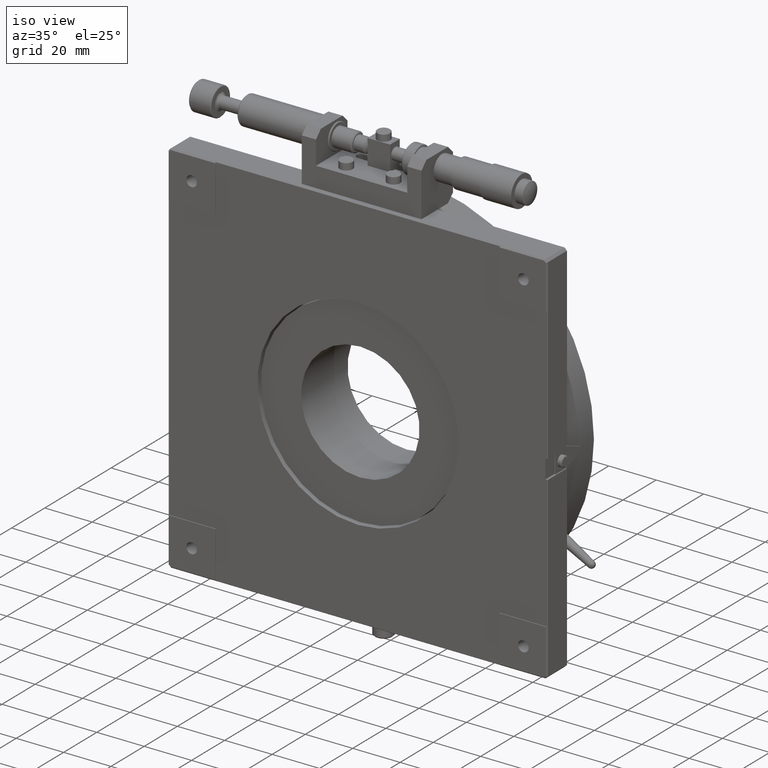
[diagram: clean part render]
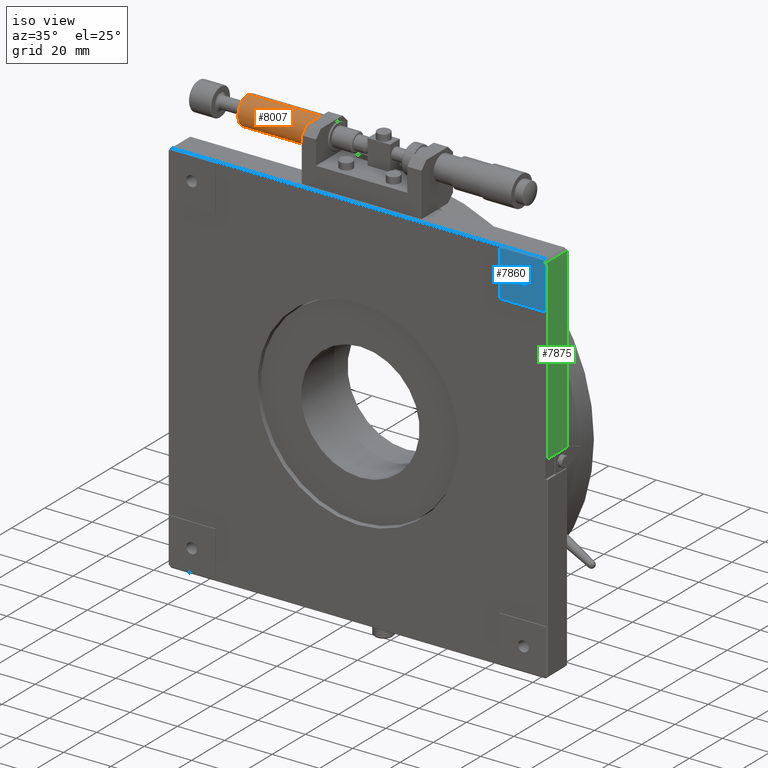
[diagram: same view with three faces highlighted in distinct colors, each labeled with its STEP entity id]
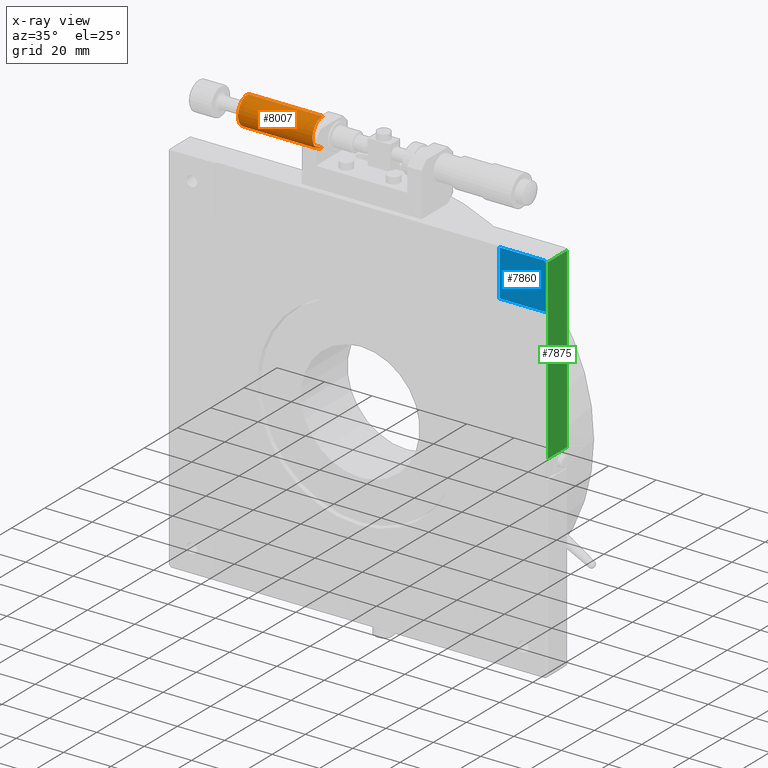
[diagram: x-ray of the same camera — body ghosted, the three highlighted faces saturated]
A machine part, iso view with three faces highlighted in distinct colors.
The next image is the same camera in x-ray (body ghosted, the three faces saturated) — at least one of them is partly hidden behind the body in this view.
Their STEP definitions:

[orange] entity #8007 — the highlighted cylindrical surface (edge-blend (fillet) strip) has radius 6 mm, axis along (-1, 0, 0).
#112 = EDGE_CURVE ( 'NONE', #9220, #9223, #5580, .T. ) ;
#153 = EDGE_CURVE ( 'NONE', #9184, #9203, #5564, .T. ) ;
#446 = CARTESIAN_POINT ( 'NONE',  ( 54.75000000000000000, 15.00000000000000000, 169.0000000000000300 ) ) ;
#454 = CARTESIAN_POINT ( 'NONE',  ( 23.25000000000000000, 15.00000000000000000, 169.0000000000013600 ) ) ;
#459 = CARTESIAN_POINT ( 'NONE',  ( 23.25000000000000000, 15.00000000000000000, 180.9999999999986600 ) ) ;
#477 = CARTESIAN_POINT ( 'NONE',  ( 54.75000000000000000, 15.00000000000000000, 181.0000000000000000 ) ) ;
#1903 = DIRECTION ( 'NONE',  ( 0.0000000000000000000, 0.0000000000000000000, 1.000000000000000000 ) ) ;
#1913 = CARTESIAN_POINT ( 'NONE',  ( 54.75000000000000000, 15.00000000000000000, 175.0000000000000300 ) ) ;
#1916 = DIRECTION ( 'NONE',  ( -1.000000000000000000, 0.0000000000000000000, 0.0000000000000000000 ) ) ;
#2673 = CARTESIAN_POINT ( 'NONE',  ( 2.250000000000000400, 15.00000000000000000, 175.0000000000000300 ) ) ;
#2680 = DIRECTION ( 'NONE',  ( -1.000000000000000000, 0.0000000000000000000, 0.0000000000000000000 ) ) ;
#2702 = DIRECTION ( 'NONE',  ( 0.0000000000000000000, 0.0000000000000000000, 1.000000000000000000 ) ) ;
#3172 = ORIENTED_EDGE ( 'NONE', *, *, #112, .T. ) ;
#3216 = ORIENTED_EDGE ( 'NONE', *, *, #7468, .T. ) ;
#3404 = ORIENTED_EDGE ( 'NONE', *, *, #7529, .T. ) ;
#3440 = CARTESIAN_POINT ( 'NONE',  ( 23.25000000000000000, 15.00000000000000000, 175.0000000000000300 ) ) ;
#3449 = DIRECTION ( 'NONE',  ( 0.0000000000000000000, 0.0000000000000000000, 1.000000000000000000 ) ) ;
#3465 = DIRECTION ( 'NONE',  ( 1.000000000000000000, -0.0000000000000000000, -0.0000000000000000000 ) ) ;
#4244 = AXIS2_PLACEMENT_3D ( 'NONE', #2673, #2680, #2702 ) ;
#4531 = ORIENTED_EDGE ( 'NONE', *, *, #153, .F. ) ;
#5277 = CIRCLE ( 'NONE', #8964, 5.999999999999977800 ) ;
#5336 = CIRCLE ( 'NONE', #8957, 5.999999999999977800 ) ;
#5528 = VECTOR ( 'NONE', #6165, 1000.000000000000000 ) ;
#5564 = LINE ( 'NONE', #6270, #5567 ) ;
#5567 = VECTOR ( 'NONE', #6282, 1000.000000000000000 ) ;
#5580 = LINE ( 'NONE', #6166, #5528 ) ;
#6165 = DIRECTION ( 'NONE',  ( -1.000000000000000000, 0.0000000000000000000, 0.0000000000000000000 ) ) ;
#6166 = CARTESIAN_POINT ( 'NONE',  ( 2.250000000000000400, 15.00000000000000000, 181.0000000000000000 ) ) ;
#6270 = CARTESIAN_POINT ( 'NONE',  ( 2.250000000000000400, 15.00000000000000000, 169.0000000000000300 ) ) ;
#6282 = DIRECTION ( 'NONE',  ( -1.000000000000000000, 0.0000000000000000000, 0.0000000000000000000 ) ) ;
#7468 = EDGE_CURVE ( 'NONE', #9184, #9220, #5277, .T. ) ;
#7529 = EDGE_CURVE ( 'NONE', #9223, #9203, #5336, .T. ) ;
#7625 = EDGE_LOOP ( 'NONE', ( #4531, #3216, #3172, #3404 ) ) ;
#8007 = ADVANCED_FACE ( 'NONE', ( #8576 ), #8527, .T. ) ;
#8527 = CYLINDRICAL_SURFACE ( 'NONE', #4244, 5.999999999999977800 ) ;
#8576 = FACE_OUTER_BOUND ( 'NONE', #7625, .T. ) ;
#8957 = AXIS2_PLACEMENT_3D ( 'NONE', #3440, #3465, #3449 ) ;
#8964 = AXIS2_PLACEMENT_3D ( 'NONE', #1913, #1916, #1903 ) ;
#9184 = VERTEX_POINT ( 'NONE', #446 ) ;
#9203 = VERTEX_POINT ( 'NONE', #454 ) ;
#9220 = VERTEX_POINT ( 'NONE', #477 ) ;
#9223 = VERTEX_POINT ( 'NONE', #459 ) ;

[blue] entity #7860 — the highlighted planar face has unit normal (0, 1, 0).
#110 = AXIS2_PLACEMENT_3D ( 'NONE', #613, #612, #604 ) ;
#245 = VERTEX_POINT ( 'NONE', #6434 ) ;
#356 = DIRECTION ( 'NONE',  ( 0.0000000000000000000, 0.0000000000000000000, 1.000000000000000000 ) ) ;
#362 = DIRECTION ( 'NONE',  ( -0.0000000000000000000, -1.000000000000000000, -0.0000000000000000000 ) ) ;
#378 = CARTESIAN_POINT ( 'NONE',  ( 150.0000000000000000, 0.0000000000000000000, 150.0000000000000000 ) ) ;
#392 = CARTESIAN_POINT ( 'NONE',  ( 140.0000000000000000, 0.0000000000000000000, 140.0000000000000000 ) ) ;
#404 = DIRECTION ( 'NONE',  ( -1.000000000000000000, 0.0000000000000000000, -0.0000000000000000000 ) ) ;
#464 = CARTESIAN_POINT ( 'NONE',  ( 150.0000000000000000, 0.0000000000000000000, 147.7500000000000000 ) ) ;
#604 = DIRECTION ( 'NONE',  ( 0.0000000000000000000, 0.0000000000000000000, 1.000000000000000000 ) ) ;
#612 = DIRECTION ( 'NONE',  ( -0.0000000000000000000, -1.000000000000000000, -0.0000000000000000000 ) ) ;
#613 = CARTESIAN_POINT ( 'NONE',  ( 150.0000000000000000, 0.0000000000000000000, 150.0000000000000000 ) ) ;
#2151 = PLANE ( 'NONE',  #8772 ) ;
#2156 = DIRECTION ( 'NONE',  ( 0.0000000000000000000, 1.000000000000000000, 0.0000000000000000000 ) ) ;
#2162 = CARTESIAN_POINT ( 'NONE',  ( 0.0000000000000000000, 0.0000000000000000000, 0.0000000000000000000 ) ) ;
#2163 = DIRECTION ( 'NONE',  ( 0.0000000000000000000, -0.0000000000000000000, 1.000000000000000000 ) ) ;
#2806 = ORIENTED_EDGE ( 'NONE', *, *, #7556, .T. ) ;
#2807 = ORIENTED_EDGE ( 'NONE', *, *, #8207, .F. ) ;
#2944 = VERTEX_POINT ( 'NONE', #6498 ) ;
#2946 = ORIENTED_EDGE ( 'NONE', *, *, #7030, .F. ) ;
#2949 = VERTEX_POINT ( 'NONE', #6465 ) ;
#2965 = VERTEX_POINT ( 'NONE', #6491 ) ;
#2970 = ORIENTED_EDGE ( 'NONE', *, *, #7568, .F. ) ;
#2972 = VERTEX_POINT ( 'NONE', #6505 ) ;
#2980 = ORIENTED_EDGE ( 'NONE', *, *, #7597, .T. ) ;
#2992 = VERTEX_POINT ( 'NONE', #6475 ) ;
#2997 = ORIENTED_EDGE ( 'NONE', *, *, #8204, .F. ) ;
#3029 = ORIENTED_EDGE ( 'NONE', *, *, #7560, .F. ) ;
#3484 = CARTESIAN_POINT ( 'NONE',  ( 159.5000000000000000, -4.336808689942017700E-016, 159.0000000000000000 ) ) ;
#3495 = DIRECTION ( 'NONE',  ( 0.0000000000000000000, 0.0000000000000000000, 1.000000000000000000 ) ) ;
#3496 = CARTESIAN_POINT ( 'NONE',  ( 140.0000000000000000, 0.0000000000000000000, 160.0000000000000000 ) ) ;
#3497 = DIRECTION ( 'NONE',  ( 0.0000000000000000000, 0.0000000000000000000, 1.000000000000000000 ) ) ;
#3528 = CARTESIAN_POINT ( 'NONE',  ( 158.7928932188129900, 0.0000000000000000000, 159.5000000000000000 ) ) ;
#3529 = DIRECTION ( 'NONE',  ( 0.7071067811865474600, 0.0000000000000000000, -0.7071067811865474600 ) ) ;
#3589 = DIRECTION ( 'NONE',  ( -1.000000000000000000, 0.0000000000000000000, -0.0000000000000000000 ) ) ;
#3593 = CARTESIAN_POINT ( 'NONE',  ( 1.000000000000000000, -4.336808689942017700E-016, 159.5000000000000000 ) ) ;
#4143 = EDGE_LOOP ( 'NONE', ( #2807, #2806, #2970, #2980, #3029 ) ) ;
#4221 = AXIS2_PLACEMENT_3D ( 'NONE', #378, #362, #356 ) ;
#5372 = LINE ( 'NONE', #3496, #5376 ) ;
#5376 = VECTOR ( 'NONE', #3497, 1000.000000000000000 ) ;
#5394 = LINE ( 'NONE', #3484, #5397 ) ;
#5397 = VECTOR ( 'NONE', #3495, 1000.000000000000000 ) ;
#5399 = LINE ( 'NONE', #3528, #5408 ) ;
#5408 = VECTOR ( 'NONE', #3529, 1000.000000000000100 ) ;
#5431 = LINE ( 'NONE', #3593, #5433 ) ;
#5433 = VECTOR ( 'NONE', #3589, 1000.000000000000000 ) ;
#5855 = CIRCLE ( 'NONE', #110, 2.250000000000001800 ) ;
#6434 = CARTESIAN_POINT ( 'NONE',  ( 150.0000000000000000, 0.0000000000000000000, 152.2500000000000000 ) ) ;
#6465 = CARTESIAN_POINT ( 'NONE',  ( 140.0000000000000000, 0.0000000000000000000, 140.0000000000000000 ) ) ;
#6475 = CARTESIAN_POINT ( 'NONE',  ( 159.5000000000000600, -6.413305492165583700E-014, 158.7928932188130500 ) ) ;
#6491 = CARTESIAN_POINT ( 'NONE',  ( 140.0000000000000000, -1.084202172485504400E-016, 159.5000000000000000 ) ) ;
#6498 = CARTESIAN_POINT ( 'NONE',  ( 159.5000000000000000, -8.131516293641283300E-017, 140.0000000000000000 ) ) ;
#6505 = CARTESIAN_POINT ( 'NONE',  ( 158.7928932188130800, -6.293793611278353200E-014, 159.5000000000000300 ) ) ;
#7030 = EDGE_CURVE ( 'NONE', #245, #9202, #5855, .T. ) ;
#7556 = EDGE_CURVE ( 'NONE', #2944, #2992, #5394, .T. ) ;
#7560 = EDGE_CURVE ( 'NONE', #2949, #2965, #5372, .T. ) ;
#7568 = EDGE_CURVE ( 'NONE', #2972, #2992, #5399, .T. ) ;
#7597 = EDGE_CURVE ( 'NONE', #2972, #2965, #5431, .T. ) ;
#7668 = EDGE_LOOP ( 'NONE', ( #2946, #2997 ) ) ;
#7860 = ADVANCED_FACE ( 'NONE', ( #8270, #8324 ), #2151, .F. ) ;
#8204 = EDGE_CURVE ( 'NONE', #9202, #245, #8662, .T. ) ;
#8207 = EDGE_CURVE ( 'NONE', #2944, #2949, #8679, .T. ) ;
#8270 = FACE_OUTER_BOUND ( 'NONE', #4143, .T. ) ;
#8324 = FACE_BOUND ( 'NONE', #7668, .T. ) ;
#8662 = CIRCLE ( 'NONE', #4221, 2.250000000000001800 ) ;
#8679 = LINE ( 'NONE', #392, #8717 ) ;
#8717 = VECTOR ( 'NONE', #404, 1000.000000000000000 ) ;
#8772 = AXIS2_PLACEMENT_3D ( 'NONE', #2162, #2156, #2163 ) ;
#9202 = VERTEX_POINT ( 'NONE', #464 ) ;

[green] entity #7875 — the highlighted planar face has unit normal (-1, 0, 0).
#338 = CARTESIAN_POINT ( 'NONE',  ( 160.0000000000000000, 12.00000000000000000, 159.0000000000000000 ) ) ;
#346 = DIRECTION ( 'NONE',  ( 0.0000000000000000000, 1.000000000000000000, -0.0000000000000000000 ) ) ;
#398 = CARTESIAN_POINT ( 'NONE',  ( 160.0000000000000000, 12.00000000000000000, 84.00000000000000000 ) ) ;
#417 = DIRECTION ( 'NONE',  ( -0.0000000000000000000, -1.000000000000000000, 0.0000000000000000000 ) ) ;
#2942 = VERTEX_POINT ( 'NONE', #6462 ) ;
#2953 = ORIENTED_EDGE ( 'NONE', *, *, #7592, .T. ) ;
#2971 = VERTEX_POINT ( 'NONE', #6499 ) ;
#2976 = VERTEX_POINT ( 'NONE', #6509 ) ;
#2988 = VERTEX_POINT ( 'NONE', #6508 ) ;
#3000 = ORIENTED_EDGE ( 'NONE', *, *, #4008, .F. ) ;
#3008 = ORIENTED_EDGE ( 'NONE', *, *, #8215, .F. ) ;
#3013 = ORIENTED_EDGE ( 'NONE', *, *, #8185, .F. ) ;
#3565 = DIRECTION ( 'NONE',  ( -0.0000000000000000000, -0.0000000000000000000, -1.000000000000000000 ) ) ;
#3596 = CARTESIAN_POINT ( 'NONE',  ( 160.0000000000000000, 0.5000000000000000000, 159.0000000000000000 ) ) ;
#4008 = EDGE_CURVE ( 'NONE', #2988, #2976, #5668, .T. ) ;
#5449 = LINE ( 'NONE', #3596, #5452 ) ;
#5452 = VECTOR ( 'NONE', #3565, 1000.000000000000000 ) ;
#5668 = LINE ( 'NONE', #6615, #5687 ) ;
#5687 = VECTOR ( 'NONE', #6578, 1000.000000000000000 ) ;
#6146 = DIRECTION ( 'NONE',  ( 0.0000000000000000000, 0.0000000000000000000, 1.000000000000000000 ) ) ;
#6148 = DIRECTION ( 'NONE',  ( -1.000000000000000000, 0.0000000000000000000, 0.0000000000000000000 ) ) ;
#6151 = PLANE ( 'NONE',  #8766 ) ;
#6158 = CARTESIAN_POINT ( 'NONE',  ( 160.0000000000000000, 12.00000000000000000, 159.0000000000000000 ) ) ;
#6462 = CARTESIAN_POINT ( 'NONE',  ( 160.0000000000000000, 0.5000000000000016700, 83.99999999999998600 ) ) ;
#6499 = CARTESIAN_POINT ( 'NONE',  ( 160.0000000000000000, 0.4999999999999990600, 159.0000000000000000 ) ) ;
#6508 = CARTESIAN_POINT ( 'NONE',  ( 159.9999999999999700, 12.00000000000000000, 159.0000000000000300 ) ) ;
#6509 = CARTESIAN_POINT ( 'NONE',  ( 160.0000000000000000, 12.00000000000000000, 84.00000000000000000 ) ) ;
#6578 = DIRECTION ( 'NONE',  ( -0.0000000000000000000, -0.0000000000000000000, -1.000000000000000000 ) ) ;
#6615 = CARTESIAN_POINT ( 'NONE',  ( 160.0000000000000000, 12.00000000000000000, 159.0000000000000000 ) ) ;
#7592 = EDGE_CURVE ( 'NONE', #2971, #2942, #5449, .T. ) ;
#7658 = EDGE_LOOP ( 'NONE', ( #3000, #3013, #2953, #3008 ) ) ;
#7875 = ADVANCED_FACE ( 'NONE', ( #8284 ), #6151, .F. ) ;
#8185 = EDGE_CURVE ( 'NONE', #2971, #2988, #8672, .T. ) ;
#8215 = EDGE_CURVE ( 'NONE', #2976, #2942, #8746, .T. ) ;
#8284 = FACE_OUTER_BOUND ( 'NONE', #7658, .T. ) ;
#8672 = LINE ( 'NONE', #338, #8695 ) ;
#8695 = VECTOR ( 'NONE', #346, 1000.000000000000000 ) ;
#8724 = VECTOR ( 'NONE', #417, 1000.000000000000000 ) ;
#8746 = LINE ( 'NONE', #398, #8724 ) ;
#8766 = AXIS2_PLACEMENT_3D ( 'NONE', #6158, #6148, #6146 ) ;